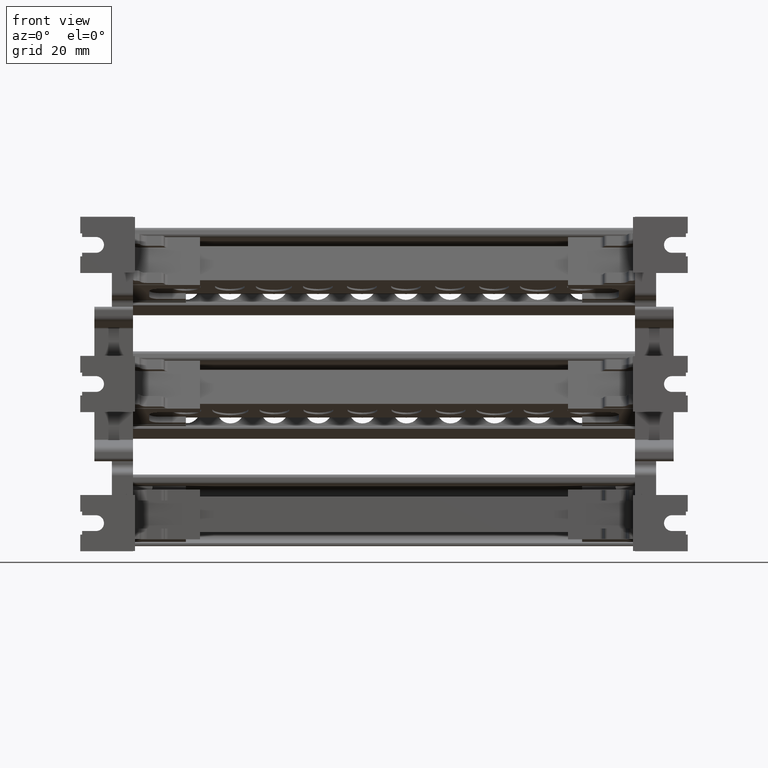
[diagram: clean part render]
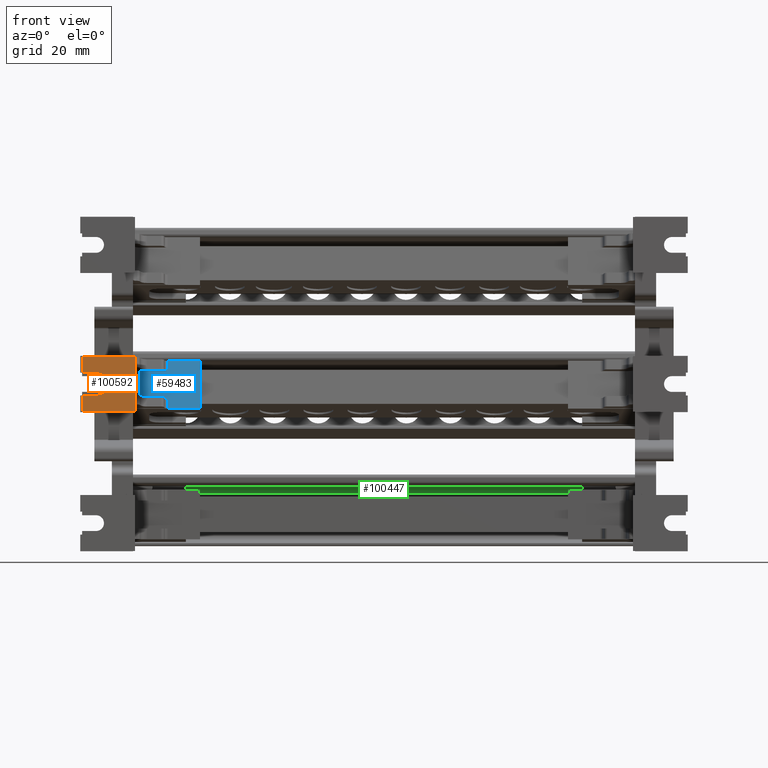
[diagram: same view with three faces highlighted in distinct colors, each labeled with its STEP entity id]
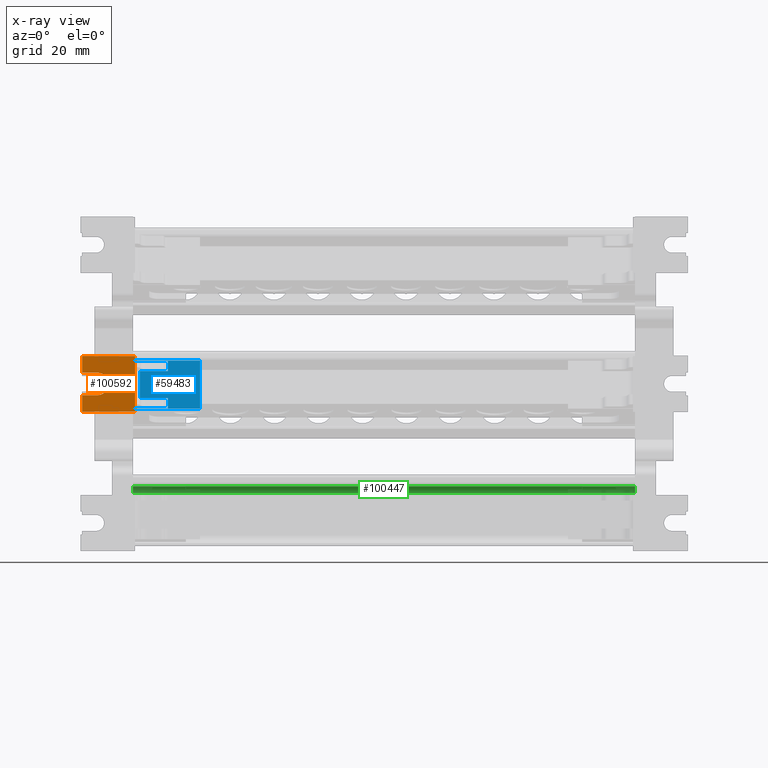
[diagram: x-ray of the same camera — body ghosted, the three highlighted faces saturated]
A machine part, front view with three faces highlighted in distinct colors.
The next image is the same camera in x-ray (body ghosted, the three faces saturated) — at least one of them is partly hidden behind the body in this view.
Their STEP definitions:

[orange] entity #100592 — the highlighted planar face has unit normal (0, 1, 0).
#9814 = EDGE_CURVE ( 'NONE', #48614, #48636, #19371, .T. ) ;
#9828 = EDGE_CURVE ( 'NONE', #48650, #48638, #79740, .T. ) ;
#9851 = EDGE_CURVE ( 'NONE', #48636, #48633, #79755, .T. ) ;
#9860 = EDGE_CURVE ( 'NONE', #48638, #48614, #79876, .T. ) ;
#9972 = EDGE_CURVE ( 'NONE', #48650, #48717, #80107, .T. ) ;
#10004 = EDGE_CURVE ( 'NONE', #48717, #48683, #74139, .T. ) ;
#10051 = EDGE_CURVE ( 'NONE', #48723, #48683, #74314, .T. ) ;
#10067 = EDGE_CURVE ( 'NONE', #48633, #48723, #74416, .T. ) ;
#19292 = VECTOR ( 'NONE', #79898, 1000.000000000000000 ) ;
#19333 = VECTOR ( 'NONE', #79742, 1000.000000000000000 ) ;
#19371 = CIRCLE ( 'NONE', #19391, 3.200000000000000200 ) ;
#19391 = AXIS2_PLACEMENT_3D ( 'NONE', #79718, #79711, #79795 ) ;
#19446 = VECTOR ( 'NONE', #79857, 1000.000000000000000 ) ;
#19497 = VECTOR ( 'NONE', #80184, 1000.000000000000000 ) ;
#19588 = VECTOR ( 'NONE', #74194, 1000.000000000000000 ) ;
#19626 = VECTOR ( 'NONE', #74326, 1000.000000000000000 ) ;
#19632 = VECTOR ( 'NONE', #74477, 1000.000000000000000 ) ;
#26847 = CARTESIAN_POINT ( 'NONE',  ( -112.7519430325252500, 225.1545390998706200, -0.02926077288248522500 ) ) ;
#26849 = CARTESIAN_POINT ( 'NONE',  ( -112.7519430325252900, 225.1545390998706200, 6.370739227117510900 ) ) ;
#26871 = CARTESIAN_POINT ( 'NONE',  ( -108.4519430325252900, 225.1545390998706200, 6.370739227117543800 ) ) ;
#26876 = CARTESIAN_POINT ( 'NONE',  ( -108.4519430325252500, 225.1545390998706200, -0.02926077288245240700 ) ) ;
#26884 = CARTESIAN_POINT ( 'NONE',  ( -112.7519430325253300, 225.1545390998706200, 11.07073922711751400 ) ) ;
#26887 = CARTESIAN_POINT ( 'NONE',  ( -97.75194303252521900, 225.1545390998705900, -4.729260772882373200 ) ) ;
#26921 = CARTESIAN_POINT ( 'NONE',  ( -112.7519430325252200, 225.1545390998706200, -4.729260772882487800 ) ) ;
#26935 = CARTESIAN_POINT ( 'NONE',  ( -97.75194303252531800, 225.1545390998705900, 11.07073922711762700 ) ) ;
#40271 = PLANE ( 'NONE',  #56989 ) ;
#40272 = CARTESIAN_POINT ( 'NONE',  ( -97.75194303252531800, 225.1545390998705900, 11.07073922711762700 ) ) ;
#40285 = FACE_OUTER_BOUND ( 'NONE', #42771, .T. ) ;
#40298 = DIRECTION ( 'NONE',  ( -7.632116880597952300E-015, 6.964579226849890400E-030, 1.000000000000000000 ) ) ;
#40304 = DIRECTION ( 'NONE',  ( 1.825071427969074100E-015, 1.000000000000000000, 6.964579226849890400E-030 ) ) ;
#42771 = EDGE_LOOP ( 'NONE', ( #105438, #105441, #105407, #105381, #105422, #105425, #105406, #105395 ) ) ;
#48614 = VERTEX_POINT ( 'NONE', #26871 ) ;
#48633 = VERTEX_POINT ( 'NONE', #26847 ) ;
#48636 = VERTEX_POINT ( 'NONE', #26876 ) ;
#48638 = VERTEX_POINT ( 'NONE', #26849 ) ;
#48650 = VERTEX_POINT ( 'NONE', #26884 ) ;
#48683 = VERTEX_POINT ( 'NONE', #26887 ) ;
#48717 = VERTEX_POINT ( 'NONE', #26935 ) ;
#48723 = VERTEX_POINT ( 'NONE', #26921 ) ;
#56989 = AXIS2_PLACEMENT_3D ( 'NONE', #40272, #40304, #40298 ) ;
#74139 = LINE ( 'NONE', #74226, #19588 ) ;
#74194 = DIRECTION ( 'NONE',  ( 7.632116880597952300E-015, -6.964579226849890400E-030, -1.000000000000000000 ) ) ;
#74226 = CARTESIAN_POINT ( 'NONE',  ( -97.75194303252531800, 225.1545390998705900, 11.07073922711762700 ) ) ;
#74314 = LINE ( 'NONE', #74323, #19626 ) ;
#74323 = CARTESIAN_POINT ( 'NONE',  ( -97.75194303252521900, 225.1545390998705900, -4.729260772882373200 ) ) ;
#74326 = DIRECTION ( 'NONE',  ( 1.000000000000000000, -1.825071427969074100E-015, 7.632116880597952300E-015 ) ) ;
#74416 = LINE ( 'NONE', #74502, #19632 ) ;
#74477 = DIRECTION ( 'NONE',  ( 7.632116880597952300E-015, -6.964579226849890400E-030, -1.000000000000000000 ) ) ;
#74502 = CARTESIAN_POINT ( 'NONE',  ( -112.7519430325253300, 225.1545390998706200, 11.07073922711751400 ) ) ;
#79711 = DIRECTION ( 'NONE',  ( 1.825071427969074100E-015, 1.000000000000000000, 6.964579226849890400E-030 ) ) ;
#79718 = CARTESIAN_POINT ( 'NONE',  ( -108.4519430325252600, 225.1545390998706200, 3.170739227117549400 ) ) ;
#79728 = CARTESIAN_POINT ( 'NONE',  ( -112.7519430325253300, 225.1545390998706200, 11.07073922711751400 ) ) ;
#79740 = LINE ( 'NONE', #79728, #19333 ) ;
#79742 = DIRECTION ( 'NONE',  ( 7.632116880597952300E-015, -6.964579226849890400E-030, -1.000000000000000000 ) ) ;
#79755 = LINE ( 'NONE', #79896, #19292 ) ;
#79795 = DIRECTION ( 'NONE',  ( 8.673617379884035500E-015, 0.0000000000000000000, -1.000000000000000000 ) ) ;
#79835 = CARTESIAN_POINT ( 'NONE',  ( -97.75194303252529000, 225.1545390998705900, 6.370739227117625500 ) ) ;
#79857 = DIRECTION ( 'NONE',  ( 1.000000000000000000, -1.825071427969074100E-015, 7.632116880597952300E-015 ) ) ;
#79876 = LINE ( 'NONE', #79835, #19446 ) ;
#79896 = CARTESIAN_POINT ( 'NONE',  ( -97.75194303252524700, 225.1545390998705900, -0.02926077288237074300 ) ) ;
#79898 = DIRECTION ( 'NONE',  ( -1.000000000000000000, 1.825071427969074100E-015, -7.632116880597952300E-015 ) ) ;
#80107 = LINE ( 'NONE', #80163, #19497 ) ;
#80163 = CARTESIAN_POINT ( 'NONE',  ( -97.75194303252531800, 225.1545390998705900, 11.07073922711762700 ) ) ;
#80184 = DIRECTION ( 'NONE',  ( 1.000000000000000000, -1.825071427969074100E-015, 7.632116880597952300E-015 ) ) ;
#100592 = ADVANCED_FACE ( 'NONE', ( #40285 ), #40271, .F. ) ;
#105381 = ORIENTED_EDGE ( 'NONE', *, *, #10004, .F. ) ;
#105395 = ORIENTED_EDGE ( 'NONE', *, *, #9814, .T. ) ;
#105406 = ORIENTED_EDGE ( 'NONE', *, *, #9860, .T. ) ;
#105407 = ORIENTED_EDGE ( 'NONE', *, *, #10051, .T. ) ;
#105422 = ORIENTED_EDGE ( 'NONE', *, *, #9972, .F. ) ;
#105425 = ORIENTED_EDGE ( 'NONE', *, *, #9828, .T. ) ;
#105438 = ORIENTED_EDGE ( 'NONE', *, *, #9851, .T. ) ;
#105441 = ORIENTED_EDGE ( 'NONE', *, *, #10067, .T. ) ;

[blue] entity #59483 — the highlighted planar face has unit normal (-0, -0.9659, 0.2588).
#11277 = VERTEX_POINT ( 'NONE', #85636 ) ;
#11322 = VERTEX_POINT ( 'NONE', #85678 ) ;
#11337 = VERTEX_POINT ( 'NONE', #85782 ) ;
#11412 = VERTEX_POINT ( 'NONE', #85747 ) ;
#13462 = VECTOR ( 'NONE', #28352, 1000.000000000000100 ) ;
#13559 = VECTOR ( 'NONE', #29191, 1000.000000000000100 ) ;
#19320 = VECTOR ( 'NONE', #111088, 1000.000000000000100 ) ;
#20031 = VECTOR ( 'NONE', #111109, 1000.000000000000000 ) ;
#20140 = VECTOR ( 'NONE', #111114, 1000.000000000000000 ) ;
#20297 = VECTOR ( 'NONE', #111804, 1000.000000000000100 ) ;
#20406 = VECTOR ( 'NONE', #112018, 1000.000000000000000 ) ;
#28322 = LINE ( 'NONE', #28349, #13462 ) ;
#28349 = CARTESIAN_POINT ( 'NONE',  ( -88.42052010762627400, 255.2437498103401500, 9.798456485691579200 ) ) ;
#28352 = DIRECTION ( 'NONE',  ( 0.0000000000000000000, -0.2588190451025225700, -0.9659258262890677600 ) ) ;
#29171 = LINE ( 'NONE', #29180, #13559 ) ;
#29180 = CARTESIAN_POINT ( 'NONE',  ( -88.42052010762624500, 255.2437498103401500, 9.798456485691579200 ) ) ;
#29191 = DIRECTION ( 'NONE',  ( 0.0000000000000000000, -0.2588190451025225700, -0.9659258262890677600 ) ) ;
#35410 = AXIS2_PLACEMENT_3D ( 'NONE', #36334, #36373, #36394 ) ;
#36303 = FACE_OUTER_BOUND ( 'NONE', #42463, .T. ) ;
#36332 = PLANE ( 'NONE',  #35410 ) ;
#36334 = CARTESIAN_POINT ( 'NONE',  ( -79.28456468098913500, 255.2437498103400900, 9.798456485691588100 ) ) ;
#36373 = DIRECTION ( 'NONE',  ( -3.825876276750780200E-015, -0.9659258262890678700, 0.2588190451025226300 ) ) ;
#36394 = DIRECTION ( 'NONE',  ( 0.0000000000000000000, -0.2588190451025225700, -0.9659258262890677600 ) ) ;
#42463 = EDGE_LOOP ( 'NONE', ( #81585, #81536, #81594, #81638, #81683, #81416, #81623, #81575, #81643, #81422, #81609, #81420 ) ) ;
#43525 = CARTESIAN_POINT ( 'NONE',  ( -79.28456468098905000, 251.5985423791173300, -3.805642851760346000 ) ) ;
#52315 = VECTOR ( 'NONE', #106064, 1000.000000000000000 ) ;
#52386 = VECTOR ( 'NONE', #106133, 1000.000000000000000 ) ;
#52478 = VECTOR ( 'NONE', #105943, 1000.000000000000100 ) ;
#52512 = VECTOR ( 'NONE', #106025, 1000.000000000000100 ) ;
#52575 = VECTOR ( 'NONE', #106145, 1000.000000000000000 ) ;
#58484 = VERTEX_POINT ( 'NONE', #43525 ) ;
#58550 = VERTEX_POINT ( 'NONE', #64718 ) ;
#58559 = VERTEX_POINT ( 'NONE', #64697 ) ;
#58665 = VERTEX_POINT ( 'NONE', #64883 ) ;
#58821 = VERTEX_POINT ( 'NONE', #65165 ) ;
#58826 = VERTEX_POINT ( 'NONE', #65132 ) ;
#58829 = VERTEX_POINT ( 'NONE', #65152 ) ;
#58853 = VERTEX_POINT ( 'NONE', #65136 ) ;
#59483 = ADVANCED_FACE ( 'NONE', ( #36303 ), #36332, .T. ) ;
#60594 = EDGE_CURVE ( 'NONE', #11337, #11322, #28322, .T. ) ;
#60644 = EDGE_CURVE ( 'NONE', #11412, #11277, #29171, .T. ) ;
#64697 = CARTESIAN_POINT ( 'NONE',  ( -98.30194303252633900, 255.2437498103402600, 9.798456485691982500 ) ) ;
#64718 = CARTESIAN_POINT ( 'NONE',  ( -79.28456468098912100, 255.2437498103402000, 9.798456485691989600 ) ) ;
#64883 = CARTESIAN_POINT ( 'NONE',  ( -98.30194303252633900, 255.2181748058837600, 9.703009269655519000 ) ) ;
#65132 = CARTESIAN_POINT ( 'NONE',  ( -98.30194303252642400, 251.6241173835739200, -3.710195635723946500 ) ) ;
#65136 = CARTESIAN_POINT ( 'NONE',  ( -98.30194303252633900, 251.5985423791172800, -3.805642851760397100 ) ) ;
#65152 = CARTESIAN_POINT ( 'NONE',  ( -96.32565844754640200, 252.3913675172769900, -0.8467791546300552600 ) ) ;
#65165 = CARTESIAN_POINT ( 'NONE',  ( -96.32565844754643100, 254.4509246721805500, 6.839592788561982500 ) ) ;
#81416 = ORIENTED_EDGE ( 'NONE', *, *, #60644, .T. ) ;
#81420 = ORIENTED_EDGE ( 'NONE', *, *, #99855, .T. ) ;
#81422 = ORIENTED_EDGE ( 'NONE', *, *, #99842, .T. ) ;
#81536 = ORIENTED_EDGE ( 'NONE', *, *, #60594, .T. ) ;
#81575 = ORIENTED_EDGE ( 'NONE', *, *, #99875, .T. ) ;
#81585 = ORIENTED_EDGE ( 'NONE', *, *, #99899, .F. ) ;
#81594 = ORIENTED_EDGE ( 'NONE', *, *, #99833, .T. ) ;
#81609 = ORIENTED_EDGE ( 'NONE', *, *, #99831, .F. ) ;
#81623 = ORIENTED_EDGE ( 'NONE', *, *, #99804, .F. ) ;
#81638 = ORIENTED_EDGE ( 'NONE', *, *, #99838, .T. ) ;
#81643 = ORIENTED_EDGE ( 'NONE', *, *, #99889, .F. ) ;
#81683 = ORIENTED_EDGE ( 'NONE', *, *, #99892, .T. ) ;
#85636 = CARTESIAN_POINT ( 'NONE',  ( -88.42052010762624500, 251.6241173835739200, -3.710195635723820400 ) ) ;
#85678 = CARTESIAN_POINT ( 'NONE',  ( -88.42052010762627400, 254.4509246721806600, 6.839592788561813700 ) ) ;
#85747 = CARTESIAN_POINT ( 'NONE',  ( -88.42052010762624500, 252.3913675172767600, -0.8467791546299910900 ) ) ;
#85782 = CARTESIAN_POINT ( 'NONE',  ( -88.42052010762627400, 255.2181748058839900, 9.703009269655439100 ) ) ;
#99804 = EDGE_CURVE ( 'NONE', #58826, #11277, #111983, .T. ) ;
#99831 = EDGE_CURVE ( 'NONE', #58559, #58550, #111101, .T. ) ;
#99833 = EDGE_CURVE ( 'NONE', #11322, #58821, #111120, .T. ) ;
#99838 = EDGE_CURVE ( 'NONE', #58821, #58829, #111108, .T. ) ;
#99842 = EDGE_CURVE ( 'NONE', #58484, #58550, #111094, .T. ) ;
#99855 = EDGE_CURVE ( 'NONE', #58559, #58665, #105956, .T. ) ;
#99875 = EDGE_CURVE ( 'NONE', #58826, #58853, #106052, .T. ) ;
#99889 = EDGE_CURVE ( 'NONE', #58484, #58853, #106147, .T. ) ;
#99892 = EDGE_CURVE ( 'NONE', #58829, #11412, #106062, .T. ) ;
#99899 = EDGE_CURVE ( 'NONE', #11337, #58665, #106154, .T. ) ;
#105941 = CARTESIAN_POINT ( 'NONE',  ( -98.30194303252633900, 255.2437498103401500, 9.798456485691568600 ) ) ;
#105943 = DIRECTION ( 'NONE',  ( 0.0000000000000000000, -0.2588190451025225700, -0.9659258262890677600 ) ) ;
#105956 = LINE ( 'NONE', #105941, #52478 ) ;
#106025 = DIRECTION ( 'NONE',  ( 0.0000000000000000000, -0.2588190451025225700, -0.9659258262890677600 ) ) ;
#106026 = CARTESIAN_POINT ( 'NONE',  ( -98.30194303252636700, 255.2437498103401500, 9.798456485691568600 ) ) ;
#106052 = LINE ( 'NONE', #106026, #52512 ) ;
#106062 = LINE ( 'NONE', #106150, #52315 ) ;
#106064 = DIRECTION ( 'NONE',  ( 1.000000000000000000, 8.830081857688904500E-016, 3.295431412790624000E-015 ) ) ;
#106133 = DIRECTION ( 'NONE',  ( -1.000000000000000000, -8.830081857702375300E-016, -3.295431412792000500E-015 ) ) ;
#106137 = CARTESIAN_POINT ( 'NONE',  ( -14.62786303253553500, 251.5985423791175000, -3.805642851760166100 ) ) ;
#106145 = DIRECTION ( 'NONE',  ( -1.000000000000000000, -8.830081857688902600E-016, -3.295431412790623200E-015 ) ) ;
#106147 = LINE ( 'NONE', #106137, #52575 ) ;
#106150 = CARTESIAN_POINT ( 'NONE',  ( -97.27233818227972500, 252.3913675172770200, -0.8467791546301133300 ) ) ;
#106154 = LINE ( 'NONE', #106160, #52386 ) ;
#106160 = CARTESIAN_POINT ( 'NONE',  ( -94.34937386256649500, 255.2181748058840500, 9.703009269655460400 ) ) ;
#111088 = DIRECTION ( 'NONE',  ( 3.449847779997729900E-015, -0.2588190451025225200, -0.9659258262890677600 ) ) ;
#111090 = CARTESIAN_POINT ( 'NONE',  ( -14.62786303253557600, 255.2437498103403200, 9.798456485692256000 ) ) ;
#111091 = CARTESIAN_POINT ( 'NONE',  ( -96.32565844754614700, 233.2951976033251400, -72.11465550346582600 ) ) ;
#111094 = LINE ( 'NONE', #111292, #20297 ) ;
#111101 = LINE ( 'NONE', #111090, #20031 ) ;
#111102 = CARTESIAN_POINT ( 'NONE',  ( -94.34937386256648000, 254.4509246721806600, 6.839592788561800400 ) ) ;
#111108 = LINE ( 'NONE', #111091, #19320 ) ;
#111109 = DIRECTION ( 'NONE',  ( 1.000000000000000000, 8.830081857702374300E-016, 3.295431412792000100E-015 ) ) ;
#111114 = DIRECTION ( 'NONE',  ( -1.000000000000000000, -8.830081857702375300E-016, -3.295431412792000500E-015 ) ) ;
#111120 = LINE ( 'NONE', #111102, #20140 ) ;
#111292 = CARTESIAN_POINT ( 'NONE',  ( -79.28456468098905000, 255.2437498103400900, 9.798456485691588100 ) ) ;
#111804 = DIRECTION ( 'NONE',  ( -0.0000000000000000000, 0.2588190451025225700, 0.9659258262890677600 ) ) ;
#111983 = LINE ( 'NONE', #112008, #20406 ) ;
#112008 = CARTESIAN_POINT ( 'NONE',  ( -97.27233818227971100, 251.6241173835740300, -3.710195635723965600 ) ) ;
#112018 = DIRECTION ( 'NONE',  ( 1.000000000000000000, 8.830081857688904500E-016, 3.295431412790624000E-015 ) ) ;

[green] entity #100447 — the highlighted cylindrical surface (edge-blend (fillet) strip) has radius 2 mm, axis along (-1, 0, -0).
#25 = CARTESIAN_POINT ( 'NONE',  ( -98.30194303252626800, 285.9156365865280200, -25.87136465465626500 ) ) ;
#6934 = EDGE_CURVE ( 'NONE', #110779, #110797, #39872, .T. ) ;
#7050 = EDGE_CURVE ( 'NONE', #110797, #110784, #114678, .T. ) ;
#8798 = EDGE_CURVE ( 'NONE', #111062, #110784, #18445, .T. ) ;
#8894 = EDGE_CURVE ( 'NONE', #111062, #110779, #31575, .T. ) ;
#18425 = AXIS2_PLACEMENT_3D ( 'NONE', #31549, #31552, #31557 ) ;
#18445 = CIRCLE ( 'NONE', #18425, 2.000000000000057300 ) ;
#18486 = VECTOR ( 'NONE', #31600, 1000.000000000000000 ) ;
#31549 = CARTESIAN_POINT ( 'NONE',  ( -98.30194303252625300, 285.8807329948745600, -27.87106006628524200 ) ) ;
#31552 = DIRECTION ( 'NONE',  ( -1.000000000000000000, 9.816221917904632000E-015, -3.601642607790475000E-015 ) ) ;
#31557 = DIRECTION ( 'NONE',  ( -6.938893903907029600E-015, -1.000000000000000000, 0.0000000000000000000 ) ) ;
#31575 = LINE ( 'NONE', #31599, #18486 ) ;
#31599 = CARTESIAN_POINT ( 'NONE',  ( 12.32605696747270900, 285.9156365865266600, -25.87136465465587800 ) ) ;
#31600 = DIRECTION ( 'NONE',  ( 1.000000000000000000, -9.816221917904632000E-015, 3.601642607790475000E-015 ) ) ;
#39818 = VECTOR ( 'NONE', #114700, 1000.000000000000000 ) ;
#39861 = AXIS2_PLACEMENT_3D ( 'NONE', #114586, #114581, #114604 ) ;
#39872 = CIRCLE ( 'NONE', #39861, 2.000000000000057300 ) ;
#40706 = DIRECTION ( 'NONE',  ( -1.000000000000000000, 9.816221917904632000E-015, -3.601642607790475000E-015 ) ) ;
#40707 = FACE_OUTER_BOUND ( 'NONE', #42359, .T. ) ;
#40722 = CARTESIAN_POINT ( 'NONE',  ( 12.32605696747271700, 285.8807329948734300, -27.87106006628484100 ) ) ;
#40739 = DIRECTION ( 'NONE',  ( -9.540979117872166100E-015, -1.000000000000000000, 0.0000000000000000000 ) ) ;
#40740 = CYLINDRICAL_SURFACE ( 'NONE', #55845, 2.000000000000057300 ) ;
#42359 = EDGE_LOOP ( 'NONE', ( #52346, #51944, #51937, #52025 ) ) ;
#51937 = ORIENTED_EDGE ( 'NONE', *, *, #7050, .F. ) ;
#51944 = ORIENTED_EDGE ( 'NONE', *, *, #8798, .T. ) ;
#52025 = ORIENTED_EDGE ( 'NONE', *, *, #6934, .F. ) ;
#52346 = ORIENTED_EDGE ( 'NONE', *, *, #8894, .F. ) ;
#55845 = AXIS2_PLACEMENT_3D ( 'NONE', #40722, #40706, #40739 ) ;
#83332 = CARTESIAN_POINT ( 'NONE',  ( 44.19805696747508300, 285.9156365865266000, -25.87136465465575700 ) ) ;
#83335 = CARTESIAN_POINT ( 'NONE',  ( -98.30194303252623900, 287.8807329948746200, -27.87106006628523900 ) ) ;
#83432 = CARTESIAN_POINT ( 'NONE',  ( 44.19805696747511100, 287.8807329948732600, -27.87106006628473800 ) ) ;
#100447 = ADVANCED_FACE ( 'NONE', ( #40707 ), #40740, .F. ) ;
#110779 = VERTEX_POINT ( 'NONE', #83332 ) ;
#110784 = VERTEX_POINT ( 'NONE', #83335 ) ;
#110797 = VERTEX_POINT ( 'NONE', #83432 ) ;
#111062 = VERTEX_POINT ( 'NONE', #25 ) ;
#114581 = DIRECTION ( 'NONE',  ( -1.000000000000000000, 9.816221917904632000E-015, -3.601642607790475000E-015 ) ) ;
#114586 = CARTESIAN_POINT ( 'NONE',  ( 44.19805696747509000, 285.8807329948730900, -27.87106006628472700 ) ) ;
#114604 = DIRECTION ( 'NONE',  ( -1.040834085586054400E-014, -1.000000000000000000, 0.0000000000000000000 ) ) ;
#114678 = LINE ( 'NONE', #114684, #39818 ) ;
#114684 = CARTESIAN_POINT ( 'NONE',  ( 12.32605696747273600, 287.8807329948734800, -27.87106006628483700 ) ) ;
#114700 = DIRECTION ( 'NONE',  ( -1.000000000000000000, 9.816221917904632000E-015, -3.601642607790475000E-015 ) ) ;